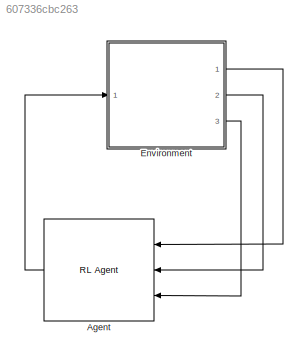
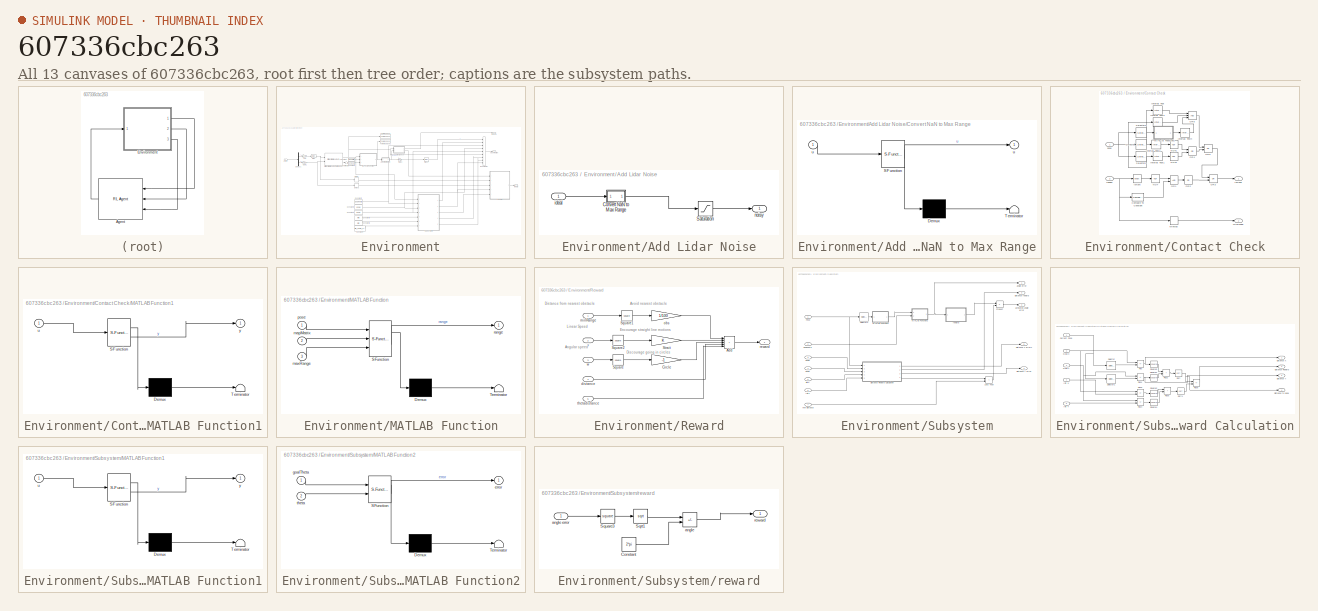
[diagram: thumbnail index - all 13 canvases of the model, root first then tree order]
MODEL slx_607336cbc263
KIND model
CONFIG AbsTol = auto
CONFIG EnableMultiTasking = off
CONFIG FixedStep = auto
CONFIG MaxStep = auto
CONFIG MinStep = auto
CONFIG RelTol = 1e-3
CONFIG SampleTimeConstraint = Unconstrained
CONFIG SolverName = VariableStepAuto
CONFIG StartTime = 0.0
CONFIG StopTime = inf
WORKSPACE source: mxarray member
WORKSPACE lidarNoiseSeeds: Simulink.Parameter (value not decoded)
BLOCK [Reference] Agent  REF=rllib/RL Agent
  NameLocation = top
  Ports = [3, 1]
  SourceBlock = rllib/RL Agent
  SourceProductName = Reinforcement Learning
  SourceType = RL Agent
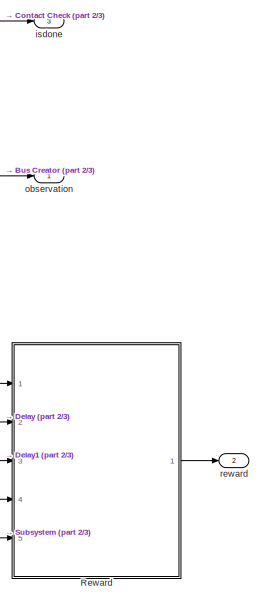
[diagram: Environment - part 1/3, middle right region]
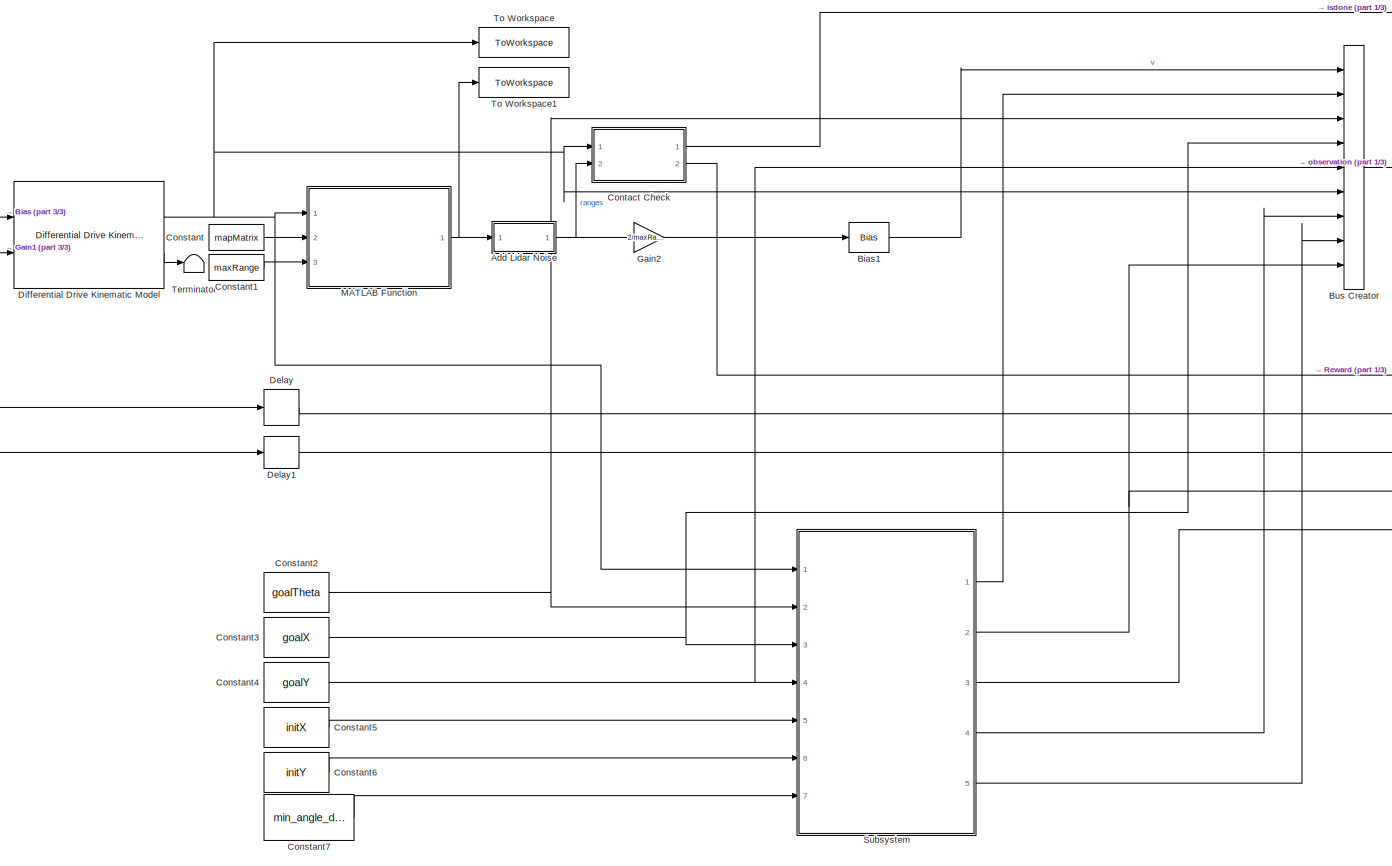
[diagram: Environment - part 2/3, center side, full height]
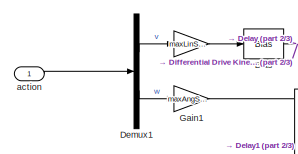
[diagram: Environment - part 3/3, top left region]
BLOCK [SubSystem] Environment
  Ports = [1, 3]
  RequestExecContextInheritance = off
BLOCK [SubSystem] Environment/Add Lidar Noise
  Ports = [1, 1]
  RequestExecContextInheritance = off
BLOCK [SubSystem] Environment/Add Lidar Noise/Convert NaN to Max Range
  ErrorFcn = Stateflow.Translate.translate
  PermitHierarchicalResolution = ExplicitOnly
  Ports = [1, 1]
  RequestExecContextInheritance = off
  SFBlockType = MATLAB Function
  TreatAsAtomicUnit = on
BLOCK [Demux] Environment/Add Lidar Noise/Convert NaN to Max Range/ Demux 
  Outputs = 1
  Ports = [1, 1]
BLOCK [S-Function] Environment/Add Lidar Noise/Convert NaN to Max Range/ SFunction 
  EnableBusSupport = on
  FunctionName = sf_sfun
  Parameters = maxRange
  PortCounts = [1 2]
  Ports = [1, 2]
  SFcnIsStateOwnerBlock = off
  SFunctionDeploymentMode = off
  Tag = Stateflow S-Function 2
BLOCK [Terminator] Environment/Add Lidar Noise/Convert NaN to Max Range/ Terminator 
BLOCK [Outport] Environment/Add Lidar Noise/Convert NaN to Max Range/u
  VectorParamsAs1DForOutWhenUnconnected = off
BLOCK [Inport] Environment/Add Lidar Noise/Convert NaN to Max Range/u 
BLOCK [Saturate] Environment/Add Lidar Noise/Saturation
  LowerLimit = 0
  UpperLimit = inf
BLOCK [Inport] Environment/Add Lidar Noise/ideal
BLOCK [Outport] Environment/Add Lidar Noise/noisy
BLOCK [Bias] Environment/Bias
  Bias = maxLinSpeed/2
  SaturateOnIntegerOverflow = off
BLOCK [Bias] Environment/Bias1
  Bias = -1
  NameLocation = top
  SaturateOnIntegerOverflow = off
BLOCK [BusCreator] Environment/Bus Creator
  DisplayOption = bar
  InheritFromInputs = on
  Inputs = 9
  Ports = [9, 1]
BLOCK [Constant] Environment/Constant
  Value = mapMatrix
BLOCK [Constant] Environment/Constant1
  Value = maxRange
BLOCK [Constant] Environment/Constant2
  Value = goalTheta
BLOCK [Constant] Environment/Constant3
  Value = goalX
BLOCK [Constant] Environment/Constant4
  Value = goalY
BLOCK [Constant] Environment/Constant5
  Value = initX
BLOCK [Constant] Environment/Constant6
  Value = initY
BLOCK [Constant] Environment/Constant7
  Value = min_angle_dis
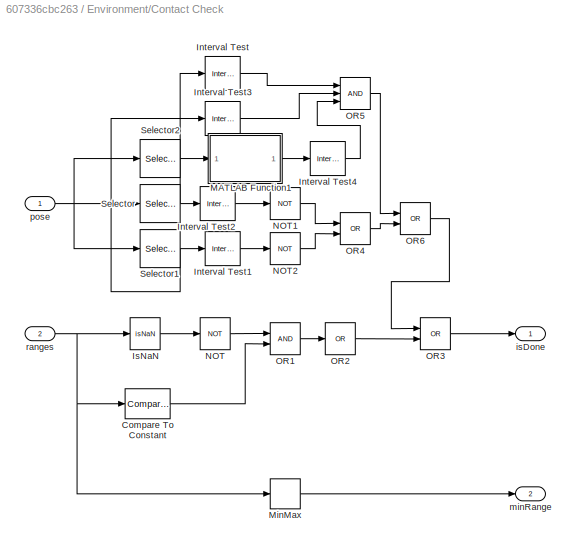
BLOCK [SubSystem] Environment/Contact Check
  Ports = [2, 2]
  RequestExecContextInheritance = off
BLOCK [Reference] Environment/Contact Check/Compare To Constant  REF=simulink/Logic and Bit
Operations/Compare
To Constant
  Ports = [1, 1]
  SourceBlock = simulink/Logic and Bit\nOperations/Compare\nTo Constant
  SourceProductBaseCode = SL
  SourceType = Compare To Constant
BLOCK [Reference] Environment/Contact Check/Interval Test  REF=simulink/Logic and Bit
Operations/Interval Test
  Ports = [1, 1]
  SourceBlock = simulink/Logic and Bit\nOperations/Interval Test
  SourceProductBaseCode = SL
  SourceType = Interval Test
BLOCK [Reference] Environment/Contact Check/Interval Test1  REF=simulink/Logic and Bit
Operations/Interval Test
  Ports = [1, 1]
  SourceBlock = simulink/Logic and Bit\nOperations/Interval Test
  SourceProductBaseCode = SL
  SourceType = Interval Test
BLOCK [Reference] Environment/Contact Check/Interval Test2  REF=simulink/Logic and Bit
Operations/Interval Test
  Ports = [1, 1]
  SourceBlock = simulink/Logic and Bit\nOperations/Interval Test
  SourceProductBaseCode = SL
  SourceType = Interval Test
BLOCK [Reference] Environment/Contact Check/Interval Test3  REF=simulink/Logic and Bit
Operations/Interval Test
  Ports = [1, 1]
  SourceBlock = simulink/Logic and Bit\nOperations/Interval Test
  SourceProductBaseCode = SL
  SourceType = Interval Test
BLOCK [Reference] Environment/Contact Check/Interval Test4  REF=simulink/Logic and Bit
Operations/Interval Test
  Ports = [1, 1]
  SourceBlock = simulink/Logic and Bit\nOperations/Interval Test
  SourceProductBaseCode = SL
  SourceType = Interval Test
BLOCK [RelationalOperator] Environment/Contact Check/IsNaN
  InputSameDT = off
  Operator = isNaN
  OutDataTypeStr = boolean
  Ports = [1, 1]
  RndMeth = Simplest
BLOCK [SubSystem] Environment/Contact Check/MATLAB Function1
  ErrorFcn = Stateflow.Translate.translate
  PermitHierarchicalResolution = ExplicitOnly
  Ports = [1, 1]
  RequestExecContextInheritance = off
  SFBlockType = MATLAB Function
  TreatAsAtomicUnit = on
BLOCK [Demux] Environment/Contact Check/MATLAB Function1/ Demux 
  Outputs = 1
  Ports = [1, 1]
BLOCK [S-Function] Environment/Contact Check/MATLAB Function1/ SFunction 
  EnableBusSupport = on
  FunctionName = sf_sfun
  PortCounts = [1 2]
  Ports = [1, 2]
  SFcnIsStateOwnerBlock = off
  SFunctionDeploymentMode = off
  Tag = Stateflow S-Function 5
BLOCK [Terminator] Environment/Contact Check/MATLAB Function1/ Terminator 
BLOCK [Inport] Environment/Contact Check/MATLAB Function1/u
BLOCK [Outport] Environment/Contact Check/MATLAB Function1/y
BLOCK [MinMax] Environment/Contact Check/MinMax
  Ports = [1, 1]
BLOCK [Logic] Environment/Contact Check/NOT
  AllPortsSameDT = off
  IconShape = distinctive
  Operator = NOT
  OutDataTypeStr = boolean
  Ports = [1, 1]
BLOCK [Logic] Environment/Contact Check/NOT1
  AllPortsSameDT = off
  IconShape = distinctive
  Operator = NOT
  OutDataTypeStr = boolean
  Ports = [1, 1]
BLOCK [Logic] Environment/Contact Check/NOT2
  AllPortsSameDT = off
  IconShape = distinctive
  Operator = NOT
  OutDataTypeStr = boolean
  Ports = [1, 1]
BLOCK [Logic] Environment/Contact Check/OR1
  AllPortsSameDT = off
  IconShape = distinctive
  OutDataTypeStr = boolean
  Ports = [2, 1]
BLOCK [Logic] Environment/Contact Check/OR2
  AllPortsSameDT = off
  IconShape = distinctive
  Inputs = 1
  Operator = OR
  OutDataTypeStr = boolean
  Ports = [1, 1]
BLOCK [Logic] Environment/Contact Check/OR3
  AllPortsSameDT = off
  IconShape = distinctive
  Operator = OR
  OutDataTypeStr = boolean
  Ports = [2, 1]
BLOCK [Logic] Environment/Contact Check/OR4
  AllPortsSameDT = off
  IconShape = distinctive
  Operator = OR
  OutDataTypeStr = boolean
  Ports = [2, 1]
BLOCK [Logic] Environment/Contact Check/OR5
  AllPortsSameDT = off
  IconShape = distinctive
  Inputs = 3
  OutDataTypeStr = boolean
  Ports = [3, 1]
BLOCK [Logic] Environment/Contact Check/OR6
  AllPortsSameDT = off
  IconShape = distinctive
  Operator = OR
  OutDataTypeStr = boolean
  Ports = [2, 1]
BLOCK [Selector] Environment/Contact Check/Selector
  IndexOptions = Index vector (dialog)
  Indices = 1
  InputPortWidth = 3
  OutputSizes = 1
  Ports = [1, 1]
BLOCK [Selector] Environment/Contact Check/Selector1
  IndexOptions = Index vector (dialog)
  Indices = 2
  InputPortWidth = 3
  OutputSizes = 1
  Ports = [1, 1]
BLOCK [Selector] Environment/Contact Check/Selector2
  IndexOptions = Index vector (dialog)
  Indices = 3
  InputPortWidth = 3
  OutputSizes = 1
  Ports = [1, 1]
BLOCK [Outport] Environment/Contact Check/isDone
  VectorParamsAs1DForOutWhenUnconnected = off
BLOCK [Outport] Environment/Contact Check/minRange
  Port = 2
  VectorParamsAs1DForOutWhenUnconnected = off
BLOCK [Inport] Environment/Contact Check/pose
BLOCK [Inport] Environment/Contact Check/ranges
  Port = 2
BLOCK [Delay] Environment/Delay
  DelayLength = 1
  InitialCondition = 0
  InputPortMap = u0
  Ports = [1, 1]
  UseCircularBuffer = on
  UserDataPersistent = on
BLOCK [Delay] Environment/Delay1
  DelayLength = 1
  InitialCondition = 0
  InputPortMap = u0
  Ports = [1, 1]
  UseCircularBuffer = on
  UserDataPersistent = on
BLOCK [Demux] Environment/Demux1
  Outputs = 2
  Ports = [1, 2]
BLOCK [Reference] Environment/Differential Drive Kinematic Model  REF=robotmobilelib/Differential Drive Kinematic Model
  Ports = [2, 2]
  SourceBlock = robotmobilelib/Differential Drive Kinematic Model
  SourceProductName = Robotics System Toolbox
  SourceType = Differential Drive Kinematic Model
BLOCK [Gain] Environment/Gain
  Gain = maxLinSpeed/2
BLOCK [Gain] Environment/Gain1
  Gain = maxAngSpeed
BLOCK [Gain] Environment/Gain2
  Gain = 2/maxRange
  NameLocation = top
BLOCK [SubSystem] Environment/MATLAB Function
  ErrorFcn = Stateflow.Translate.translate
  PermitHierarchicalResolution = ExplicitOnly
  Ports = [3, 1]
  RequestExecContextInheritance = off
  SFBlockType = MATLAB Function
  TreatAsAtomicUnit = on
BLOCK [Demux] Environment/MATLAB Function/ Demux 
  Outputs = 1
  Ports = [1, 1]
BLOCK [S-Function] Environment/MATLAB Function/ SFunction 
  EnableBusSupport = on
  FunctionName = sf_sfun
  Parameters = mapScale
  PortCounts = [3 2]
  Ports = [3, 2]
  SFcnIsStateOwnerBlock = off
  SFunctionDeploymentMode = off
  Tag = Stateflow S-Function 1
BLOCK [Terminator] Environment/MATLAB Function/ Terminator 
BLOCK [Inport] Environment/MATLAB Function/mapMatrix
  Port = 2
BLOCK [Inport] Environment/MATLAB Function/maxRange
  Port = 3
BLOCK [Inport] Environment/MATLAB Function/pose
BLOCK [Outport] Environment/MATLAB Function/range
BLOCK [SubSystem] Environment/Reward
  Ports = [5, 1]
  RequestExecContextInheritance = off
BLOCK [Sum] Environment/Reward/Add
  IconShape = rectangular
  Inputs = +++++
  Ports = [5, 1]
BLOCK [Gain] Environment/Reward/Circle
  Gain = -1
BLOCK [Math] Environment/Reward/Square
  Operator = square
  Ports = [1, 1]
  SignedPower = on
BLOCK [Math] Environment/Reward/Square1
  Operator = square
  Ports = [1, 1]
  SignedPower = on
BLOCK [Math] Environment/Reward/Square2
  Operator = square
  Ports = [1, 1]
  SignedPower = on
BLOCK [Gain] Environment/Reward/Strait
BLOCK [Inport] Environment/Reward/distance
  Port = 4
BLOCK [Inport] Environment/Reward/minRange
BLOCK [Gain] Environment/Reward/obs
  Gain = 1/100
BLOCK [Outport] Environment/Reward/reward
  VectorParamsAs1DForOutWhenUnconnected = off
BLOCK [Inport] Environment/Reward/thetadistance
  Port = 5
BLOCK [Inport] Environment/Reward/v
  Port = 2
BLOCK [Inport] Environment/Reward/w
  Port = 3
BLOCK [SubSystem] Environment/Subsystem
  Ports = [7, 5]
  RequestExecContextInheritance = off
BLOCK [SubSystem] Environment/Subsystem/Distance Reward Calculation
  Ports = [5, 4]
  RequestExecContextInheritance = off
BLOCK [Inport] Environment/Subsystem/Distance Reward Calculation/Current Pose
BLOCK [Outport] Environment/Subsystem/Distance Reward Calculation/Distance Reward
  Port = 2
BLOCK [Outport] Environment/Subsystem/Distance Reward Calculation/Distance X
BLOCK [Outport] Environment/Subsystem/Distance Reward Calculation/Distance Y
  Port = 3
BLOCK [Outport] Environment/Subsystem/Distance Reward Calculation/Distance to goal
  Port = 4
BLOCK [Inport] Environment/Subsystem/Distance Reward Calculation/Goal X
  Port = 2
BLOCK [Inport] Environment/Subsystem/Distance Reward Calculation/Goal Y
  Port = 3
BLOCK [Inport] Environment/Subsystem/Distance Reward Calculation/Init X
  Port = 4
BLOCK [Inport] Environment/Subsystem/Distance Reward Calculation/Init Y
  Port = 5
BLOCK [Sum] Environment/Subsystem/Distance Reward Calculation/Plus
  IconShape = rectangular
  Inputs = -+
  Ports = [2, 1]
BLOCK [Sum] Environment/Subsystem/Distance Reward Calculation/Plus1
  IconShape = rectangular
  Inputs = -+
  Ports = [2, 1]
BLOCK [Sum] Environment/Subsystem/Distance Reward Calculation/Plus2
  IconShape = rectangular
  Ports = [2, 1]
BLOCK [Sum] Environment/Subsystem/Distance Reward Calculation/Plus3
  IconShape = rectangular
  Inputs = -+
  Ports = [2, 1]
BLOCK [Sum] Environment/Subsystem/Distance Reward Calculation/Plus4
  IconShape = rectangular
  Inputs = -+
  Ports = [2, 1]
BLOCK [Sum] Environment/Subsystem/Distance Reward Calculation/Plus5
  IconShape = rectangular
  Ports = [2, 1]
BLOCK [Sum] Environment/Subsystem/Distance Reward Calculation/Plus6
  IconShape = rectangular
  Inputs = -+
  Ports = [2, 1]
BLOCK [Selector] Environment/Subsystem/Distance Reward Calculation/Selector
  IndexOptions = Index vector (dialog)
  Indices = 1
  InputPortWidth = 3
  OutputSizes = 1
  Ports = [1, 1]
BLOCK [Selector] Environment/Subsystem/Distance Reward Calculation/Selector1
  IndexOptions = Index vector (dialog)
  Indices = 2
  InputPortWidth = 3
  OutputSizes = 1
  Ports = [1, 1]
BLOCK [Sqrt] Environment/Subsystem/Distance Reward Calculation/Sqrt
BLOCK [Sqrt] Environment/Subsystem/Distance Reward Calculation/Sqrt1
BLOCK [Math] Environment/Subsystem/Distance Reward Calculation/Square1
  Operator = square
  Ports = [1, 1]
  SignedPower = on
BLOCK [Math] Environment/Subsystem/Distance Reward Calculation/Square2
  Operator = square
  Ports = [1, 1]
  SignedPower = on
BLOCK [Math] Environment/Subsystem/Distance Reward Calculation/Square3
  Operator = square
  Ports = [1, 1]
  SignedPower = on
BLOCK [Math] Environment/Subsystem/Distance Reward Calculation/Square4
  Operator = square
  Ports = [1, 1]
  SignedPower = on
BLOCK [Outport] Environment/Subsystem/Distance reward
  Port = 2
BLOCK [Outport] Environment/Subsystem/Distance x error1
  Port = 5
BLOCK [Outport] Environment/Subsystem/Distance y error
  Port = 4
BLOCK [Inport] Environment/Subsystem/InitY
  Port = 6
BLOCK [RelationalOperator] Environment/Subsystem/Less Than
  InputSameDT = off
  Operator = <
  OutDataTypeStr = boolean
  Ports = [2, 1]
  RndMeth = Simplest
BLOCK [SubSystem] Environment/Subsystem/MATLAB Function1
  ErrorFcn = Stateflow.Translate.translate
  PermitHierarchicalResolution = ExplicitOnly
  Ports = [1, 1]
  RequestExecContextInheritance = off
  SFBlockType = MATLAB Function
  TreatAsAtomicUnit = on
BLOCK [Demux] Environment/Subsystem/MATLAB Function1/ Demux 
  Outputs = 1
  Ports = [1, 1]
BLOCK [S-Function] Environment/Subsystem/MATLAB Function1/ SFunction 
  EnableBusSupport = on
  FunctionName = sf_sfun
  PortCounts = [1 2]
  Ports = [1, 2]
  SFcnIsStateOwnerBlock = off
  SFunctionDeploymentMode = off
  Tag = Stateflow S-Function 3
BLOCK [Terminator] Environment/Subsystem/MATLAB Function1/ Terminator 
BLOCK [Inport] Environment/Subsystem/MATLAB Function1/u
BLOCK [Outport] Environment/Subsystem/MATLAB Function1/y
BLOCK [SubSystem] Environment/Subsystem/MATLAB Function2
  ErrorFcn = Stateflow.Translate.translate
  PermitHierarchicalResolution = ExplicitOnly
  Ports = [2, 1]
  RequestExecContextInheritance = off
  SFBlockType = MATLAB Function
  TreatAsAtomicUnit = on
BLOCK [Demux] Environment/Subsystem/MATLAB Function2/ Demux 
  Outputs = 1
  Ports = [1, 1]
BLOCK [S-Function] Environment/Subsystem/MATLAB Function2/ SFunction 
  EnableBusSupport = on
  FunctionName = sf_sfun
  PortCounts = [2 2]
  Ports = [2, 2]
  SFcnIsStateOwnerBlock = off
  SFunctionDeploymentMode = off
  Tag = Stateflow S-Function 4
BLOCK [Terminator] Environment/Subsystem/MATLAB Function2/ Terminator 
BLOCK [Outport] Environment/Subsystem/MATLAB Function2/error
BLOCK [Inport] Environment/Subsystem/MATLAB Function2/goalTheta
BLOCK [Inport] Environment/Subsystem/MATLAB Function2/theta
  Port = 2
BLOCK [Inport] Environment/Subsystem/Pose
BLOCK [Product] Environment/Subsystem/Product
  Ports = [2, 1]
BLOCK [Selector] Environment/Subsystem/Selector2
  IndexOptions = Index vector (dialog)
  Indices = 3
  InputPortWidth = 3
  OutputSizes = 1
  Ports = [1, 1]
BLOCK [Outport] Environment/Subsystem/activated angle error
  Port = 3
BLOCK [Outport] Environment/Subsystem/angle error
BLOCK [Inport] Environment/Subsystem/goalTheta
  Port = 2
BLOCK [Inport] Environment/Subsystem/goalX
  Port = 3
BLOCK [Inport] Environment/Subsystem/goalY
  Port = 4
BLOCK [Inport] Environment/Subsystem/initX
  Port = 5
BLOCK [Inport] Environment/Subsystem/min distance
  Port = 7
BLOCK [SubSystem] Environment/Subsystem/reward
  Ports = [1, 1]
  RequestExecContextInheritance = off
BLOCK [Constant] Environment/Subsystem/reward/Constant
  Value = 2*pi
BLOCK [Sqrt] Environment/Subsystem/reward/Sqrt1
BLOCK [Math] Environment/Subsystem/reward/Square3
  Operator = square
  Ports = [1, 1]
  SignedPower = on
BLOCK [Sum] Environment/Subsystem/reward/angle
  IconShape = rectangular
  Inputs = -+
  Ports = [2, 1]
BLOCK [Inport] Environment/Subsystem/reward/angle error
BLOCK [Outport] Environment/Subsystem/reward/reward
BLOCK [Terminator] Environment/Terminator
BLOCK [ToWorkspace] Environment/To Workspace
  FixptAsFi = on
  MaxDataPoints = inf
  Ports = [1]
  SampleTime = -1
  Save2DSignal = 2-D array (concatenate along first dimension)
  VariableName = pose
BLOCK [ToWorkspace] Environment/To Workspace1
  FixptAsFi = on
  MaxDataPoints = inf
  Ports = [1]
  SampleTime = -1
  VariableName = range
BLOCK [Inport] Environment/action
BLOCK [Outport] Environment/isdone
  Port = 3
BLOCK [Outport] Environment/observation
BLOCK [Outport] Environment/reward
  Port = 2
ANNOTATION Environment/Reward: Angular speed
ANNOTATION Environment/Reward: Avoid nearest obstacle
ANNOTATION Environment/Reward: Discourage going in circles
ANNOTATION Environment/Reward: Distance from nearest obstacle
ANNOTATION Environment/Reward: Encourage straight line motions
ANNOTATION Environment/Reward: Linear Speed
LINE Agent:1 -> Environment:1
LINE Environment/Add Lidar Noise/Convert NaN to Max Range:1 -> Environment/Add Lidar Noise/Saturation:1
LINE Environment/Add Lidar Noise/Saturation:1 -> Environment/Add Lidar Noise/noisy:1
LINE Environment/Add Lidar Noise/ideal:1 -> Environment/Add Lidar Noise/Convert NaN to Max Range:1
NET Environment/Add Lidar Noise:1 -> Environment/Contact Check:2, Environment/Gain2:1
LINE Environment/Bias1:1 -> Environment/Bus Creator:1
NET Environment/Bias:1 -> Environment/Delay:1, Environment/Differential Drive Kinematic Model:1
LINE Environment/Bus Creator:1 -> Environment/observation:1
LINE Environment/Constant1:1 -> Environment/MATLAB Function:3
NET Environment/Constant2:1 -> Environment/Bus Creator:3, Environment/Subsystem:2
NET Environment/Constant3:1 -> Environment/Bus Creator:4, Environment/Subsystem:3
NET Environment/Constant4:1 -> Environment/Bus Creator:5, Environment/Subsystem:4
LINE Environment/Constant5:1 -> Environment/Subsystem:5
LINE Environment/Constant6:1 -> Environment/Subsystem:6
LINE Environment/Constant7:1 -> Environment/Subsystem:7
LINE Environment/Constant:1 -> Environment/MATLAB Function:2
LINE Environment/Contact Check/Compare To Constant:1 -> Environment/Contact Check/OR1:2
LINE Environment/Contact Check/Interval Test1:1 -> Environment/Contact Check/NOT2:1
LINE Environment/Contact Check/Interval Test2:1 -> Environment/Contact Check/NOT1:1
LINE Environment/Contact Check/Interval Test3:1 -> Environment/Contact Check/OR5:2
LINE Environment/Contact Check/Interval Test4:1 -> Environment/Contact Check/OR5:3
LINE Environment/Contact Check/Interval Test:1 -> Environment/Contact Check/OR5:1
LINE Environment/Contact Check/IsNaN:1 -> Environment/Contact Check/NOT:1
LINE Environment/Contact Check/MATLAB Function1:1 -> Environment/Contact Check/Interval Test4:1
LINE Environment/Contact Check/MinMax:1 -> Environment/Contact Check/minRange:1
LINE Environment/Contact Check/NOT1:1 -> Environment/Contact Check/OR4:1
LINE Environment/Contact Check/NOT2:1 -> Environment/Contact Check/OR4:2
LINE Environment/Contact Check/NOT:1 -> Environment/Contact Check/OR1:1
LINE Environment/Contact Check/OR1:1 -> Environment/Contact Check/OR2:1
LINE Environment/Contact Check/OR2:1 -> Environment/Contact Check/OR3:2
LINE Environment/Contact Check/OR3:1 -> Environment/Contact Check/isDone:1
LINE Environment/Contact Check/OR4:1 -> Environment/Contact Check/OR6:2
LINE Environment/Contact Check/OR5:1 -> Environment/Contact Check/OR6:1
LINE Environment/Contact Check/OR6:1 -> Environment/Contact Check/OR3:1
NET Environment/Contact Check/Selector1:1 -> Environment/Contact Check/Interval Test1:1, Environment/Contact Check/Interval Test3:1
LINE Environment/Contact Check/Selector2:1 -> Environment/Contact Check/MATLAB Function1:1
NET Environment/Contact Check/Selector:1 -> Environment/Contact Check/Interval Test2:1, Environment/Contact Check/Interval Test:1
NET Environment/Contact Check/pose:1 -> Environment/Contact Check/Selector1:1, Environment/Contact Check/Selector2:1, Environment/Contact Check/Selector:1
NET Environment/Contact Check/ranges:1 -> Environment/Contact Check/Compare To Constant:1, Environment/Contact Check/IsNaN:1, Environment/Contact Check/MinMax:1
LINE Environment/Contact Check:1 -> Environment/isdone:1
LINE Environment/Contact Check:2 -> Environment/Reward:1
LINE Environment/Delay1:1 -> Environment/Reward:3
LINE Environment/Delay:1 -> Environment/Reward:2
LINE Environment/Demux1:1 -> Environment/Gain:1
LINE Environment/Demux1:2 -> Environment/Gain1:1
NET Environment/Differential Drive Kinematic Model:1 -> Environment/Bus Creator:6, Environment/Contact Check:1, Environment/MATLAB Function:1, Environment/Subsystem:1, Environment/To Workspace:1
LINE Environment/Differential Drive Kinematic Model:2 -> Environment/Terminator:1
NET Environment/Gain1:1 -> Environment/Delay1:1, Environment/Differential Drive Kinematic Model:2
LINE Environment/Gain2:1 -> Environment/Bias1:1
LINE Environment/Gain:1 -> Environment/Bias:1
NET Environment/MATLAB Function:1 -> Environment/Add Lidar Noise:1, Environment/To Workspace1:1
LINE Environment/Reward/Add:1 -> Environment/Reward/reward:1
LINE Environment/Reward/Circle:1 -> Environment/Reward/Add:3
LINE Environment/Reward/Square1:1 -> Environment/Reward/obs:1
LINE Environment/Reward/Square2:1 -> Environment/Reward/Strait:1
LINE Environment/Reward/Square:1 -> Environment/Reward/Circle:1
LINE Environment/Reward/Strait:1 -> Environment/Reward/Add:2
LINE Environment/Reward/distance:1 -> Environment/Reward/Add:4
LINE Environment/Reward/minRange:1 -> Environment/Reward/Square1:1
LINE Environment/Reward/obs:1 -> Environment/Reward/Add:1
LINE Environment/Reward/thetadistance:1 -> Environment/Reward/Add:5
LINE Environment/Reward/v:1 -> Environment/Reward/Square2:1
LINE Environment/Reward/w:1 -> Environment/Reward/Square:1
LINE Environment/Reward:1 -> Environment/reward:1
NET Environment/Subsystem/Distance Reward Calculation/Current Pose:1 -> Environment/Subsystem/Distance Reward Calculation/Selector1:1, Environment/Subsystem/Distance Reward Calculation/Selector:1
NET Environment/Subsystem/Distance Reward Calculation/Goal X:1 -> Environment/Subsystem/Distance Reward Calculation/Plus3:1, Environment/Subsystem/Distance Reward Calculation/Plus:1
NET Environment/Subsystem/Distance Reward Calculation/Goal Y:1 -> Environment/Subsystem/Distance Reward Calculation/Plus1:1, Environment/Subsystem/Distance Reward Calculation/Plus4:1
LINE Environment/Subsystem/Distance Reward Calculation/Init X:1 -> Environment/Subsystem/Distance Reward Calculation/Plus3:2
LINE Environment/Subsystem/Distance Reward Calculation/Init Y:1 -> Environment/Subsystem/Distance Reward Calculation/Plus4:2
NET Environment/Subsystem/Distance Reward Calculation/Plus1:1 -> Environment/Subsystem/Distance Reward Calculation/Distance Y:1, Environment/Subsystem/Distance Reward Calculation/Square1:1
LINE Environment/Subsystem/Distance Reward Calculation/Plus2:1 -> Environment/Subsystem/Distance Reward Calculation/Sqrt:1
LINE Environment/Subsystem/Distance Reward Calculation/Plus3:1 -> Environment/Subsystem/Distance Reward Calculation/Square2:1
LINE Environment/Subsystem/Distance Reward Calculation/Plus4:1 -> Environment/Subsystem/Distance Reward Calculation/Square4:1
LINE Environment/Subsystem/Distance Reward Calculation/Plus5:1 -> Environment/Subsystem/Distance Reward Calculation/Sqrt1:1
LINE Environment/Subsystem/Distance Reward Calculation/Plus6:1 -> Environment/Subsystem/Distance Reward Calculation/Distance Reward:1
NET Environment/Subsystem/Distance Reward Calculation/Plus:1 -> Environment/Subsystem/Distance Reward Calculation/Distance X:1, Environment/Subsystem/Distance Reward Calculation/Square3:1
LINE Environment/Subsystem/Distance Reward Calculation/Selector1:1 -> Environment/Subsystem/Distance Reward Calculation/Plus1:2
LINE Environment/Subsystem/Distance Reward Calculation/Selector:1 -> Environment/Subsystem/Distance Reward Calculation/Plus:2
LINE Environment/Subsystem/Distance Reward Calculation/Sqrt1:1 -> Environment/Subsystem/Distance Reward Calculation/Plus6:2
NET Environment/Subsystem/Distance Reward Calculation/Sqrt:1 -> Environment/Subsystem/Distance Reward Calculation/Distance to goal:1, Environment/Subsystem/Distance Reward Calculation/Plus6:1
LINE Environment/Subsystem/Distance Reward Calculation/Square1:1 -> Environment/Subsystem/Distance Reward Calculation/Plus2:2
LINE Environment/Subsystem/Distance Reward Calculation/Square2:1 -> Environment/Subsystem/Distance Reward Calculation/Plus5:1
LINE Environment/Subsystem/Distance Reward Calculation/Square3:1 -> Environment/Subsystem/Distance Reward Calculation/Plus2:1
LINE Environment/Subsystem/Distance Reward Calculation/Square4:1 -> Environment/Subsystem/Distance Reward Calculation/Plus5:2
LINE Environment/Subsystem/Distance Reward Calculation:1 -> Environment/Subsystem/Distance x error1:1
LINE Environment/Subsystem/Distance Reward Calculation:2 -> Environment/Subsystem/Distance reward:1
LINE Environment/Subsystem/Distance Reward Calculation:3 -> Environment/Subsystem/Distance y error:1
LINE Environment/Subsystem/Distance Reward Calculation:4 -> Environment/Subsystem/Less Than:1
LINE Environment/Subsystem/InitY:1 -> Environment/Subsystem/Distance Reward Calculation:5
LINE Environment/Subsystem/Less Than:1 -> Environment/Subsystem/Product:2
LINE Environment/Subsystem/MATLAB Function1:1 -> Environment/Subsystem/MATLAB Function2:1
NET Environment/Subsystem/MATLAB Function2:1 -> Environment/Subsystem/angle error:1, Environment/Subsystem/reward:1
NET Environment/Subsystem/Pose:1 -> Environment/Subsystem/Distance Reward Calculation:1, Environment/Subsystem/Selector2:1
LINE Environment/Subsystem/Product:1 -> Environment/Subsystem/activated angle error:1
LINE Environment/Subsystem/Selector2:1 -> Environment/Subsystem/MATLAB Function1:1
LINE Environment/Subsystem/goalTheta:1 -> Environment/Subsystem/MATLAB Function2:2
LINE Environment/Subsystem/goalX:1 -> Environment/Subsystem/Distance Reward Calculation:2
LINE Environment/Subsystem/goalY:1 -> Environment/Subsystem/Distance Reward Calculation:3
LINE Environment/Subsystem/initX:1 -> Environment/Subsystem/Distance Reward Calculation:4
LINE Environment/Subsystem/min distance:1 -> Environment/Subsystem/Less Than:2
LINE Environment/Subsystem/reward/Constant:1 -> Environment/Subsystem/reward/angle:2
LINE Environment/Subsystem/reward/Sqrt1:1 -> Environment/Subsystem/reward/angle:1
LINE Environment/Subsystem/reward/Square3:1 -> Environment/Subsystem/reward/Sqrt1:1
LINE Environment/Subsystem/reward/angle error:1 -> Environment/Subsystem/reward/Square3:1
LINE Environment/Subsystem/reward/angle:1 -> Environment/Subsystem/reward/reward:1
LINE Environment/Subsystem/reward:1 -> Environment/Subsystem/Product:1
LINE Environment/Subsystem:1 -> Environment/Bus Creator:2
NET Environment/Subsystem:2 -> Environment/Bus Creator:9, Environment/Reward:4
LINE Environment/Subsystem:3 -> Environment/Reward:5
LINE Environment/Subsystem:4 -> Environment/Bus Creator:7
LINE Environment/Subsystem:5 -> Environment/Bus Creator:8
LINE Environment/action:1 -> Environment/Demux1:1
LINE Environment:1 -> Agent:1
LINE Environment:2 -> Agent:2
LINE Environment:3 -> Agent:3
note: NET lines group one-source signal fan-out (src -> all destinations, sorted); 1:1 wires keep LINE
CHART Environment/MATLAB Function states=1 transitions=1
  STATE_LABEL 'eML_blk_kernel()'
  STATE_LABEL "SCRIPT:\nfunction range = RangeSensor(pose, mapMatrix, maxRange, mapScale)\npersistent r\nif isempty(r)\n r = rangeSensor('HorizontalAngle', [0,2*pi], 'HorizontalAngleResolution', 2*pi/35, 'Range', [0 maxRange]);\nend\nrange = r(pose', binaryOccupancyMap(mapMatrix, mapScale));\nend"
CHART Environment/Add Lidar Noise/Convert NaN to Max Range states=1 transitions=1
  STATE_LABEL 'eML_blk_kernel()'
  STATE_LABEL 'SCRIPT:\nfunction u = removeNans(u,maxRange)\n\nu(isnan(u)) = maxRange;'
CHART Environment/Subsystem/MATLAB Function1 states=1 transitions=1
  STATE_LABEL 'eML_blk_kernel()'
  STATE_LABEL "SCRIPT:\nfunction y = fcn(u)\nx=0;\nm=u;\nwhile m<-pi\n    m=m+pi;\n    %disp('m=');\n    %disp(m);\n    x=x+1;\n    %disp('x=');\n    %disp(x);\nend\nwhile m>pi\n    m=m-pi;\n    %disp('m=');\n    %disp(m);\n    x=x+1;\n    %disp('x=');\n    %disp(x);\nend\n\n\n% x number you want to know if even or odd\n%% create an expression\ns = (-1)^x;\n%% if s = -1, the N is odd, else N is even\nif s == -1\n    %disp('x is odd');\n   ...<+161ch>"
CHART Environment/Subsystem/MATLAB Function2 states=1 transitions=1
  STATE_LABEL 'eML_blk_kernel()'
  STATE_LABEL 'SCRIPT:\nfunction error = fcn2(goalTheta,theta)\nif theta>0 && goalTheta>0\n    error=goalTheta-theta;\nelseif theta>0 && goalTheta<0\n    error=-goalTheta+(pi-theta);\nelseif theta<0 && goalTheta>0\n    error=goalTheta+(pi-theta);\nelseif theta<0 && goalTheta<0\n    error=goalTheta-theta;\nelseif theta==0\n    error=goalTheta;\nelse\n    error=0;\nend\n    '
CHART Environment/Contact Check/MATLAB Function1 states=1 transitions=1
  STATE_LABEL 'eML_blk_kernel()'
  STATE_LABEL "SCRIPT:\nfunction y = fcn(u)\nx=0;\nm=u;\nwhile m<-pi\n    m=m+pi;\n    %disp('m=');\n    %disp(m);\n    x=x+1;\n    %disp('x=');\n    %disp(x);\nend\nwhile m>pi\n    m=m-pi;\n    %disp('m=');\n    %disp(m);\n    x=x+1;\n    %disp('x=');\n    %disp(x);\nend\n\n\n% x number you want to know if even or odd\n%% create an expression\ns = (-1)^x;\n%% if s = -1, the N is odd, else N is even\nif s == -1\n    %disp('x is odd');\n   ...<+161ch>"
CHART  states=0 transitions=0
CHART  states=0 transitions=0
CHART  states=0 transitions=0
CHART  states=0 transitions=0
CHART  states=0 transitions=0
